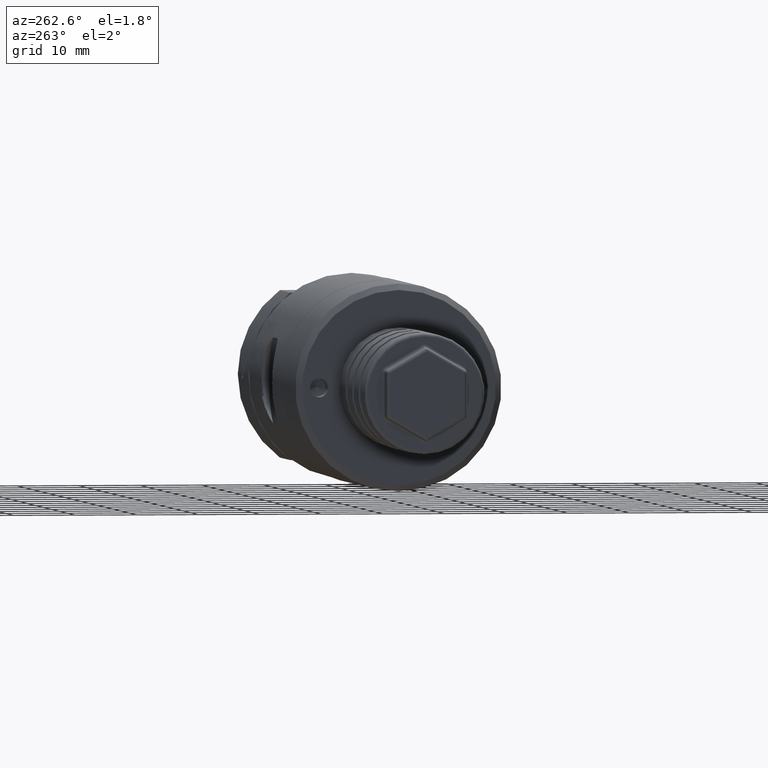
[diagram: clean part render]
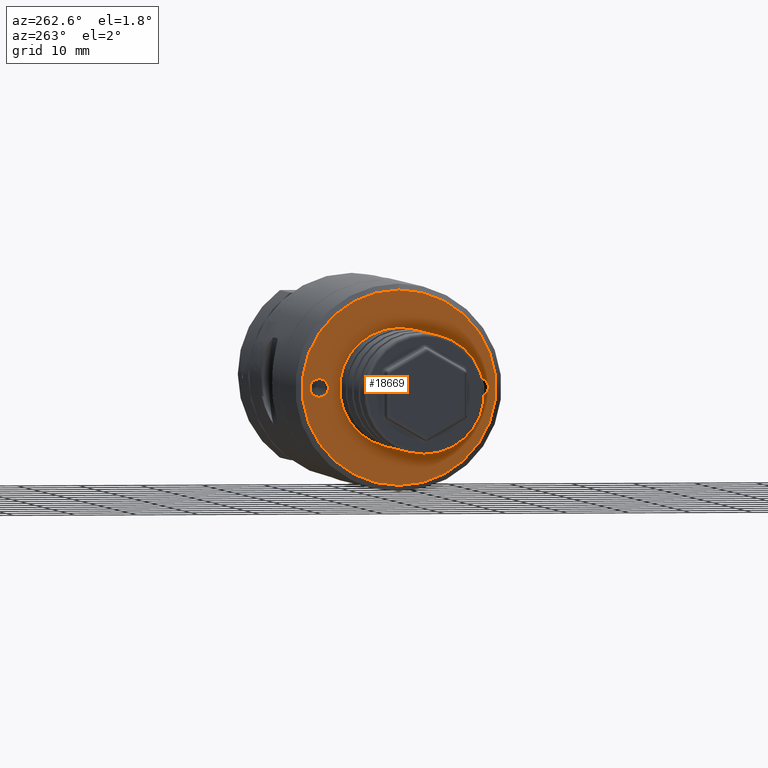
[diagram: same view with one face highlighted and labeled with its STEP entity id]
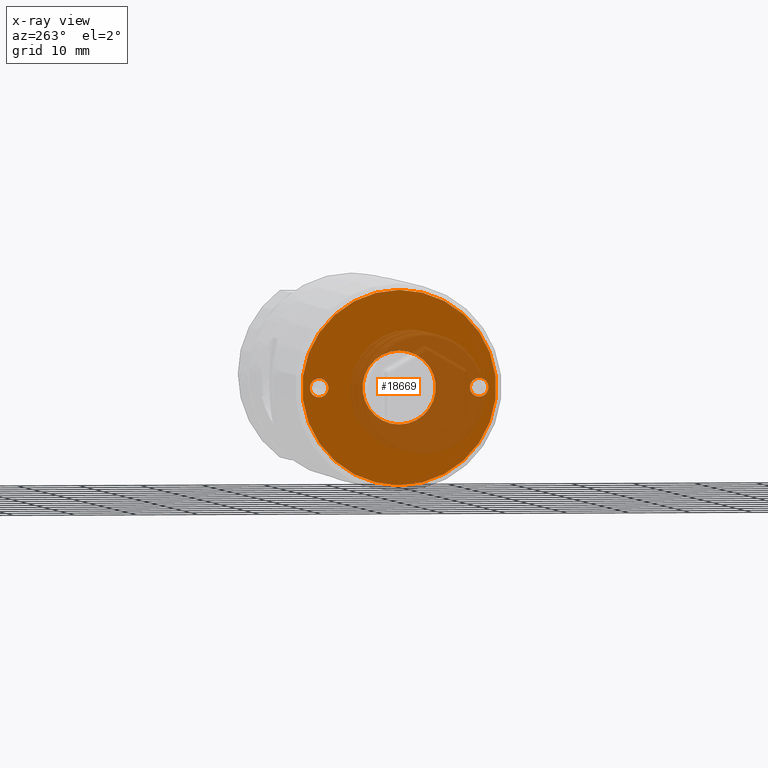
[diagram: x-ray of the same camera — body ghosted, the highlighted face saturated]
A machine part, auxiliary view. The second image highlights one B-rep face of the part: STEP entity #18669.
The next image is the same camera in x-ray: the body ghosted, the highlighted face saturated — about 35% of this face is hidden behind the body in this view.
In plain terms, the highlighted planar face has unit normal (-1, 0, 0).
Its self-contained STEP definition (entity closure, byte-faithful):
#668 = CARTESIAN_POINT ( 'NONE',  ( -72.90000000000000600, 7.286648454926752000E-016, 5.950000000000000200 ) ) ;
#685 = CARTESIAN_POINT ( 'NONE',  ( -72.90000000000000600, 13.00000000000000000, -1.500000000000000000 ) ) ;
#789 = DIRECTION ( 'NONE',  ( 0.0000000000000000000, 0.0000000000000000000, -1.000000000000000000 ) ) ;
#961 = EDGE_LOOP ( 'NONE', ( #4175, #7080 ) ) ;
#1125 = FACE_BOUND ( 'NONE', #15602, .T. ) ;
#1323 = CARTESIAN_POINT ( 'NONE',  ( -72.90000000000000600, 0.0000000000000000000, -5.950000000000000200 ) ) ;
#1521 = CARTESIAN_POINT ( 'NONE',  ( -72.90000000000000600, 13.00000000000000000, 1.500000000000000000 ) ) ;
#1821 = CIRCLE ( 'NONE', #4121, 15.75000000000000000 ) ;
#2312 = DIRECTION ( 'NONE',  ( 0.0000000000000000000, 0.0000000000000000000, 1.000000000000000000 ) ) ;
#2422 = CARTESIAN_POINT ( 'NONE',  ( -72.90000000000000600, 0.0000000000000000000, 0.0000000000000000000 ) ) ;
#2507 = AXIS2_PLACEMENT_3D ( 'NONE', #11796, #13327, #4561 ) ;
#2628 = DIRECTION ( 'NONE',  ( 0.0000000000000000000, 0.0000000000000000000, 1.000000000000000000 ) ) ;
#2642 = CIRCLE ( 'NONE', #7687, 5.950000000000000200 ) ;
#3371 = EDGE_CURVE ( 'NONE', #11808, #17255, #14104, .T. ) ;
#4121 = AXIS2_PLACEMENT_3D ( 'NONE', #2422, #16927, #14120 ) ;
#4175 = ORIENTED_EDGE ( 'NONE', *, *, #10383, .T. ) ;
#4316 = DIRECTION ( 'NONE',  ( -1.000000000000000000, 0.0000000000000000000, 0.0000000000000000000 ) ) ;
#4547 = EDGE_CURVE ( 'NONE', #17255, #11808, #11686, .T. ) ;
#4561 = DIRECTION ( 'NONE',  ( 0.0000000000000000000, 0.0000000000000000000, 1.000000000000000000 ) ) ;
#4566 = CARTESIAN_POINT ( 'NONE',  ( -72.90000000000000600, -13.00000000000000000, -1.500000000000000000 ) ) ;
#4690 = AXIS2_PLACEMENT_3D ( 'NONE', #17988, #15199, #9485 ) ;
#4938 = FACE_OUTER_BOUND ( 'NONE', #8472, .T. ) ;
#5170 = CARTESIAN_POINT ( 'NONE',  ( -72.90000000000000600, 0.0000000000000000000, -15.75000000000000000 ) ) ;
#5225 = AXIS2_PLACEMENT_3D ( 'NONE', #9846, #9900, #18583 ) ;
#5771 = CARTESIAN_POINT ( 'NONE',  ( -72.90000000000000600, -13.00000000000000000, 1.500000000000000000 ) ) ;
#5778 = CARTESIAN_POINT ( 'NONE',  ( -72.90000000000000600, -13.00000000000000000, 0.0000000000000000000 ) ) ;
#6066 = FACE_BOUND ( 'NONE', #961, .T. ) ;
#6234 = AXIS2_PLACEMENT_3D ( 'NONE', #5778, #7036, #2628 ) ;
#7036 = DIRECTION ( 'NONE',  ( -1.000000000000000000, 0.0000000000000000000, 0.0000000000000000000 ) ) ;
#7080 = ORIENTED_EDGE ( 'NONE', *, *, #14646, .T. ) ;
#7651 = CIRCLE ( 'NONE', #6234, 1.500000000000000000 ) ;
#7687 = AXIS2_PLACEMENT_3D ( 'NONE', #16921, #9614, #789 ) ;
#8097 = VERTEX_POINT ( 'NONE', #5170 ) ;
#8472 = EDGE_LOOP ( 'NONE', ( #12840, #13265 ) ) ;
#8666 = VERTEX_POINT ( 'NONE', #4566 ) ;
#8947 = DIRECTION ( 'NONE',  ( 0.0000000000000000000, 0.0000000000000000000, 1.000000000000000000 ) ) ;
#9485 = DIRECTION ( 'NONE',  ( 0.0000000000000000000, 0.0000000000000000000, -1.000000000000000000 ) ) ;
#9614 = DIRECTION ( 'NONE',  ( 1.000000000000000000, 0.0000000000000000000, 0.0000000000000000000 ) ) ;
#9745 = EDGE_CURVE ( 'NONE', #16130, #8666, #7651, .T. ) ;
#9846 = CARTESIAN_POINT ( 'NONE',  ( -72.90000000000000600, 13.00000000000000000, 0.0000000000000000000 ) ) ;
#9900 = DIRECTION ( 'NONE',  ( -1.000000000000000000, 0.0000000000000000000, 0.0000000000000000000 ) ) ;
#10237 = VERTEX_POINT ( 'NONE', #668 ) ;
#10383 = EDGE_CURVE ( 'NONE', #17245, #10237, #2642, .T. ) ;
#10808 = EDGE_CURVE ( 'NONE', #8666, #16130, #16538, .T. ) ;
#11168 = ORIENTED_EDGE ( 'NONE', *, *, #4547, .F. ) ;
#11638 = CIRCLE ( 'NONE', #4690, 5.950000000000000200 ) ;
#11686 = CIRCLE ( 'NONE', #5225, 1.500000000000000000 ) ;
#11745 = PLANE ( 'NONE',  #2507 ) ;
#11796 = CARTESIAN_POINT ( 'NONE',  ( -72.90000000000000600, -2.571673343026989900E-015, 0.0000000000000000000 ) ) ;
#11808 = VERTEX_POINT ( 'NONE', #685 ) ;
#12033 = CARTESIAN_POINT ( 'NONE',  ( -72.90000000000000600, 0.0000000000000000000, 0.0000000000000000000 ) ) ;
#12118 = VERTEX_POINT ( 'NONE', #17607 ) ;
#12840 = ORIENTED_EDGE ( 'NONE', *, *, #14154, .T. ) ;
#13265 = ORIENTED_EDGE ( 'NONE', *, *, #18039, .T. ) ;
#13327 = DIRECTION ( 'NONE',  ( -1.000000000000000000, 0.0000000000000000000, 0.0000000000000000000 ) ) ;
#13904 = AXIS2_PLACEMENT_3D ( 'NONE', #14583, #4316, #17438 ) ;
#14104 = CIRCLE ( 'NONE', #14453, 1.500000000000000000 ) ;
#14120 = DIRECTION ( 'NONE',  ( 0.0000000000000000000, 0.0000000000000000000, 1.000000000000000000 ) ) ;
#14154 = EDGE_CURVE ( 'NONE', #8097, #12118, #16649, .T. ) ;
#14206 = EDGE_LOOP ( 'NONE', ( #17556, #15727 ) ) ;
#14453 = AXIS2_PLACEMENT_3D ( 'NONE', #18257, #15403, #2312 ) ;
#14583 = CARTESIAN_POINT ( 'NONE',  ( -72.90000000000000600, -13.00000000000000000, 0.0000000000000000000 ) ) ;
#14646 = EDGE_CURVE ( 'NONE', #10237, #17245, #11638, .T. ) ;
#14977 = ORIENTED_EDGE ( 'NONE', *, *, #3371, .F. ) ;
#15199 = DIRECTION ( 'NONE',  ( 1.000000000000000000, 0.0000000000000000000, 0.0000000000000000000 ) ) ;
#15403 = DIRECTION ( 'NONE',  ( -1.000000000000000000, 0.0000000000000000000, 0.0000000000000000000 ) ) ;
#15602 = EDGE_LOOP ( 'NONE', ( #11168, #14977 ) ) ;
#15727 = ORIENTED_EDGE ( 'NONE', *, *, #10808, .F. ) ;
#16073 = FACE_BOUND ( 'NONE', #14206, .T. ) ;
#16130 = VERTEX_POINT ( 'NONE', #5771 ) ;
#16538 = CIRCLE ( 'NONE', #13904, 1.500000000000000000 ) ;
#16649 = CIRCLE ( 'NONE', #18164, 15.75000000000000000 ) ;
#16921 = CARTESIAN_POINT ( 'NONE',  ( -72.90000000000000600, 0.0000000000000000000, 0.0000000000000000000 ) ) ;
#16927 = DIRECTION ( 'NONE',  ( -1.000000000000000000, 0.0000000000000000000, 0.0000000000000000000 ) ) ;
#17245 = VERTEX_POINT ( 'NONE', #1323 ) ;
#17255 = VERTEX_POINT ( 'NONE', #1521 ) ;
#17438 = DIRECTION ( 'NONE',  ( 0.0000000000000000000, 0.0000000000000000000, 1.000000000000000000 ) ) ;
#17556 = ORIENTED_EDGE ( 'NONE', *, *, #9745, .F. ) ;
#17607 = CARTESIAN_POINT ( 'NONE',  ( -72.90000000000000600, 1.990051048614449300E-015, 15.75000000000000000 ) ) ;
#17823 = DIRECTION ( 'NONE',  ( -1.000000000000000000, 0.0000000000000000000, 0.0000000000000000000 ) ) ;
#17988 = CARTESIAN_POINT ( 'NONE',  ( -72.90000000000000600, 0.0000000000000000000, 0.0000000000000000000 ) ) ;
#18039 = EDGE_CURVE ( 'NONE', #12118, #8097, #1821, .T. ) ;
#18164 = AXIS2_PLACEMENT_3D ( 'NONE', #12033, #17823, #8947 ) ;
#18257 = CARTESIAN_POINT ( 'NONE',  ( -72.90000000000000600, 13.00000000000000000, 0.0000000000000000000 ) ) ;
#18583 = DIRECTION ( 'NONE',  ( 0.0000000000000000000, 0.0000000000000000000, 1.000000000000000000 ) ) ;
#18669 = ADVANCED_FACE ( 'NONE', ( #4938, #1125, #16073, #6066 ), #11745, .T. ) ;